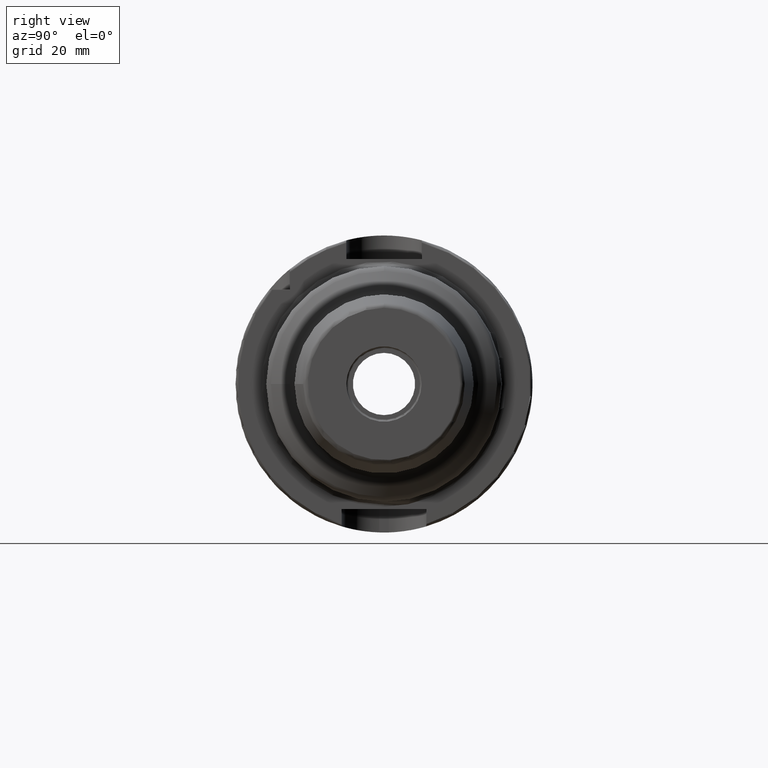
[diagram: clean part render]
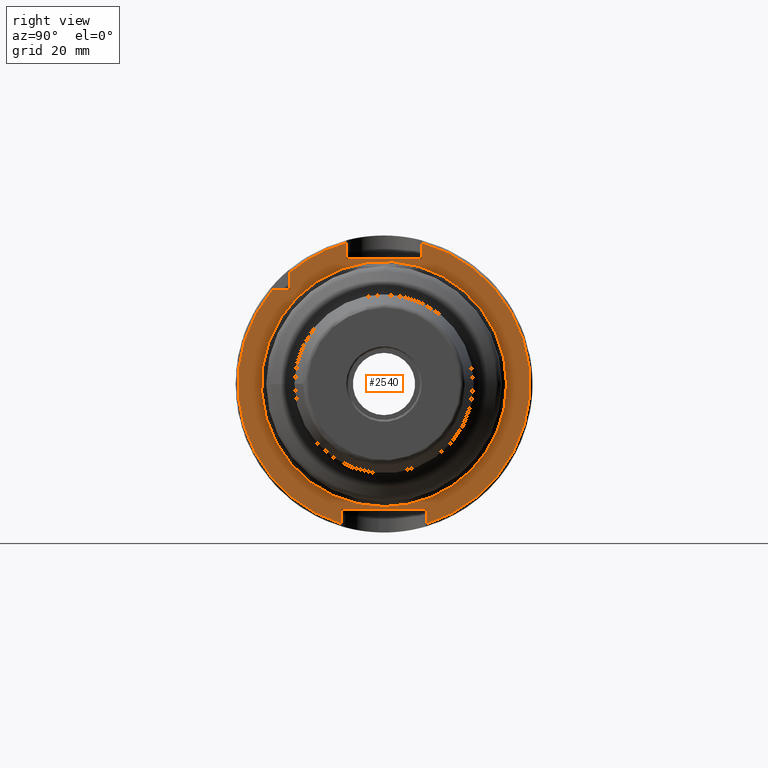
[diagram: same view with one face highlighted and labeled with its STEP entity id]
A machine part, right view. The second image highlights one B-rep face of the part: STEP entity #2540.
In plain terms, the highlighted planar face has unit normal (1, 0, 0).
Its self-contained STEP definition (entity closure, byte-faithful):
#153=FACE_BOUND('',#350,.T.);
#163=PLANE('',#2728);
#213=FACE_OUTER_BOUND('',#349,.T.);
#349=EDGE_LOOP('',(#1721,#1722,#1723,#1724,#1725,#1726,#1727,#1728,#1729,
#1730,#1731));
#350=EDGE_LOOP('',(#1732,#1733));
#486=LINE('',#3984,#601);
#487=LINE('',#3988,#602);
#488=LINE('',#3990,#603);
#489=LINE('',#3992,#604);
#490=LINE('',#3996,#605);
#491=LINE('',#3998,#606);
#492=LINE('',#4000,#607);
#493=LINE('',#4003,#608);
#601=VECTOR('',#3149,10.);
#602=VECTOR('',#3152,10.);
#603=VECTOR('',#3153,10.);
#604=VECTOR('',#3154,10.);
#605=VECTOR('',#3157,10.);
#606=VECTOR('',#3158,10.);
#607=VECTOR('',#3159,10.);
#608=VECTOR('',#3162,10.);
#742=CIRCLE('',#2726,26.);
#743=CIRCLE('',#2727,26.);
#744=CIRCLE('',#2729,31.);
#745=CIRCLE('',#2730,31.);
#746=CIRCLE('',#2731,31.);
#965=VERTEX_POINT('',#3976);
#966=VERTEX_POINT('',#3978);
#967=VERTEX_POINT('',#3982);
#968=VERTEX_POINT('',#3983);
#969=VERTEX_POINT('',#3985);
#970=VERTEX_POINT('',#3987);
#971=VERTEX_POINT('',#3989);
#972=VERTEX_POINT('',#3991);
#973=VERTEX_POINT('',#3993);
#974=VERTEX_POINT('',#3995);
#975=VERTEX_POINT('',#3997);
#976=VERTEX_POINT('',#3999);
#977=VERTEX_POINT('',#4001);
#1267=EDGE_CURVE('',#965,#966,#742,.T.);
#1268=EDGE_CURVE('',#966,#965,#743,.T.);
#1269=EDGE_CURVE('',#967,#968,#486,.T.);
#1270=EDGE_CURVE('',#968,#969,#744,.T.);
#1271=EDGE_CURVE('',#969,#970,#487,.T.);
#1272=EDGE_CURVE('',#970,#971,#488,.T.);
#1273=EDGE_CURVE('',#971,#972,#489,.T.);
#1274=EDGE_CURVE('',#972,#973,#745,.T.);
#1275=EDGE_CURVE('',#973,#974,#490,.T.);
#1276=EDGE_CURVE('',#974,#975,#491,.T.);
#1277=EDGE_CURVE('',#975,#976,#492,.T.);
#1278=EDGE_CURVE('',#976,#977,#746,.T.);
#1279=EDGE_CURVE('',#977,#967,#493,.T.);
#1721=ORIENTED_EDGE('',*,*,#1269,.T.);
#1722=ORIENTED_EDGE('',*,*,#1270,.T.);
#1723=ORIENTED_EDGE('',*,*,#1271,.T.);
#1724=ORIENTED_EDGE('',*,*,#1272,.T.);
#1725=ORIENTED_EDGE('',*,*,#1273,.T.);
#1726=ORIENTED_EDGE('',*,*,#1274,.T.);
#1727=ORIENTED_EDGE('',*,*,#1275,.T.);
#1728=ORIENTED_EDGE('',*,*,#1276,.T.);
#1729=ORIENTED_EDGE('',*,*,#1277,.T.);
#1730=ORIENTED_EDGE('',*,*,#1278,.T.);
#1731=ORIENTED_EDGE('',*,*,#1279,.T.);
#1732=ORIENTED_EDGE('',*,*,#1268,.F.);
#1733=ORIENTED_EDGE('',*,*,#1267,.F.);
#2540=ADVANCED_FACE('',(#213,#153),#163,.T.);
#2726=AXIS2_PLACEMENT_3D('',#3979,#3143,#3144);
#2727=AXIS2_PLACEMENT_3D('',#3980,#3145,#3146);
#2728=AXIS2_PLACEMENT_3D('',#3981,#3147,#3148);
#2729=AXIS2_PLACEMENT_3D('',#3986,#3150,#3151);
#2730=AXIS2_PLACEMENT_3D('',#3994,#3155,#3156);
#2731=AXIS2_PLACEMENT_3D('',#4002,#3160,#3161);
#3143=DIRECTION('center_axis',(1.,0.,0.));
#3144=DIRECTION('ref_axis',(0.,-1.,-1.22464679914735E-16));
#3145=DIRECTION('center_axis',(1.,0.,0.));
#3146=DIRECTION('ref_axis',(0.,-1.,-1.22464679914735E-16));
#3147=DIRECTION('center_axis',(1.,0.,0.));
#3148=DIRECTION('ref_axis',(0.,0.,-1.));
#3149=DIRECTION('',(0.,-1.,0.));
#3150=DIRECTION('center_axis',(1.,0.,0.));
#3151=DIRECTION('ref_axis',(0.,0.,-1.));
#3152=DIRECTION('',(0.,0.,1.));
#3153=DIRECTION('',(0.,1.,0.));
#3154=DIRECTION('',(0.,0.,-1.));
#3155=DIRECTION('center_axis',(1.,0.,0.));
#3156=DIRECTION('ref_axis',(0.,0.,-1.));
#3157=DIRECTION('',(0.,0.,-1.));
#3158=DIRECTION('',(0.,-1.,0.));
#3159=DIRECTION('',(0.,0.,1.));
#3160=DIRECTION('center_axis',(1.,0.,0.));
#3161=DIRECTION('ref_axis',(0.,0.,-1.));
#3162=DIRECTION('',(0.,0.,-1.));
#3976=CARTESIAN_POINT('',(26.,-3.18408167778312E-15,-26.));
#3978=CARTESIAN_POINT('',(26.,26.,6.36816335556624E-15));
#3979=CARTESIAN_POINT('Origin',(26.,0.,0.));
#3980=CARTESIAN_POINT('Origin',(26.,0.,0.));
#3981=CARTESIAN_POINT('Origin',(26.,0.,0.));
#3982=CARTESIAN_POINT('',(26.,-20.,20.));
#3983=CARTESIAN_POINT('',(26.,-23.685438564654,20.));
#3984=CARTESIAN_POINT('',(26.,-12.,20.));
#3985=CARTESIAN_POINT('',(26.,-9.,-29.6647939483827));
#3986=CARTESIAN_POINT('Origin',(26.,0.,0.));
#3987=CARTESIAN_POINT('',(26.,-9.,-26.5));
#3988=CARTESIAN_POINT('',(26.,-9.,-13.25));
#3989=CARTESIAN_POINT('',(26.,9.,-26.5));
#3990=CARTESIAN_POINT('',(26.,1.94289029309402E-15,-26.5));
#3991=CARTESIAN_POINT('',(26.,9.,-29.6647939483827));
#3992=CARTESIAN_POINT('',(26.,9.,-13.25));
#3993=CARTESIAN_POINT('',(26.,8.,29.9499582637439));
#3994=CARTESIAN_POINT('Origin',(26.,0.,0.));
#3995=CARTESIAN_POINT('',(26.,8.,26.5));
#3996=CARTESIAN_POINT('',(26.,8.,13.25));
#3997=CARTESIAN_POINT('',(26.,-8.,26.5));
#3998=CARTESIAN_POINT('',(26.,5.55111512312578E-16,26.5));
#3999=CARTESIAN_POINT('',(26.,-8.,29.9499582637439));
#4000=CARTESIAN_POINT('',(26.,-8.,13.25));
#4001=CARTESIAN_POINT('',(26.,-20.,23.685438564654));
#4002=CARTESIAN_POINT('Origin',(26.,0.,0.));
#4003=CARTESIAN_POINT('',(26.,-20.,10.));